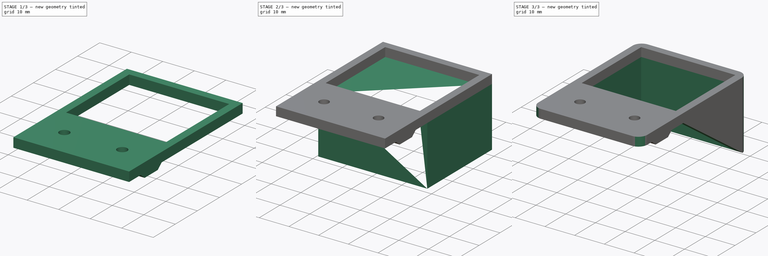
[diagram: build sequence overview — one tinted view per stage of 3, left to right]
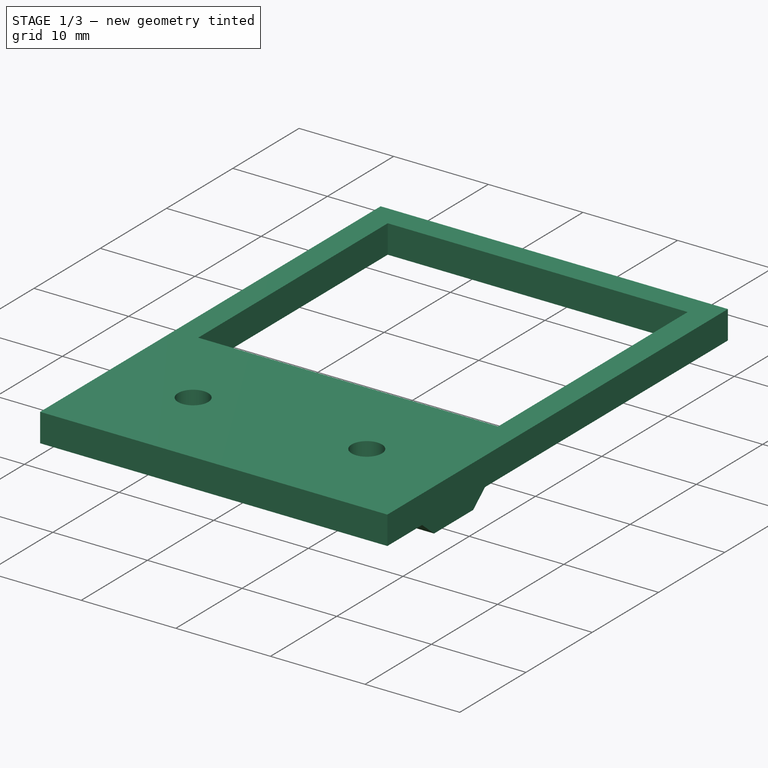
[diagram: stage 1 of 3 — iso view after this stage's code; geometry added in this stage tinted green]
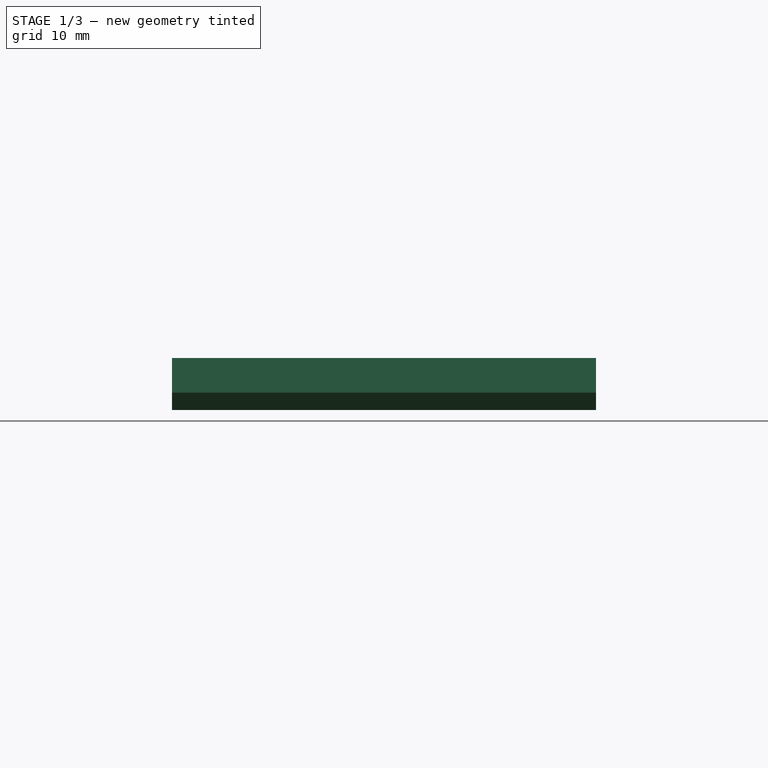
[diagram: stage 1 of 3 — front view after this stage's code; geometry added in this stage tinted green]
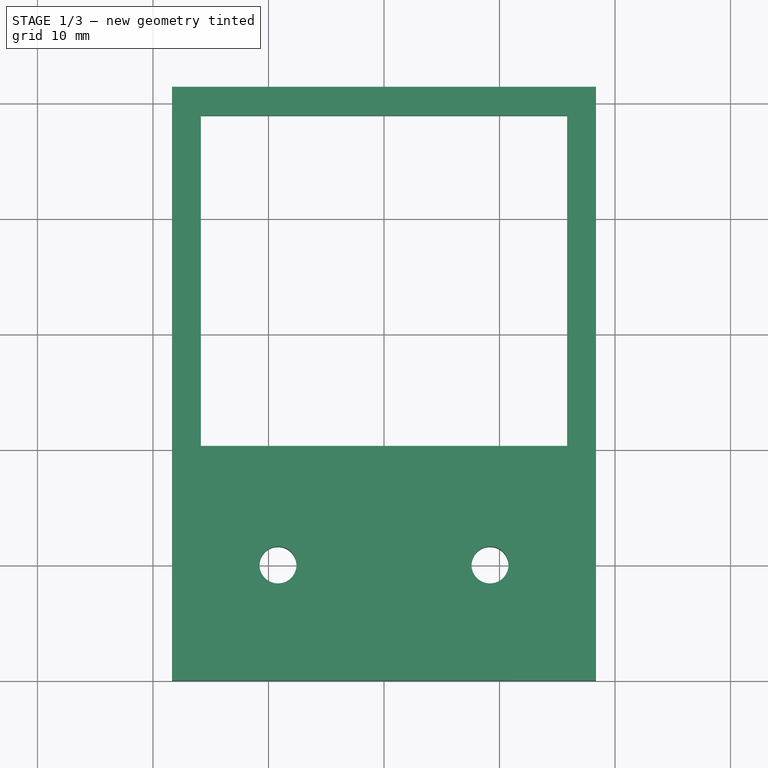
[diagram: stage 1 of 3 — top view after this stage's code; geometry added in this stage tinted green]
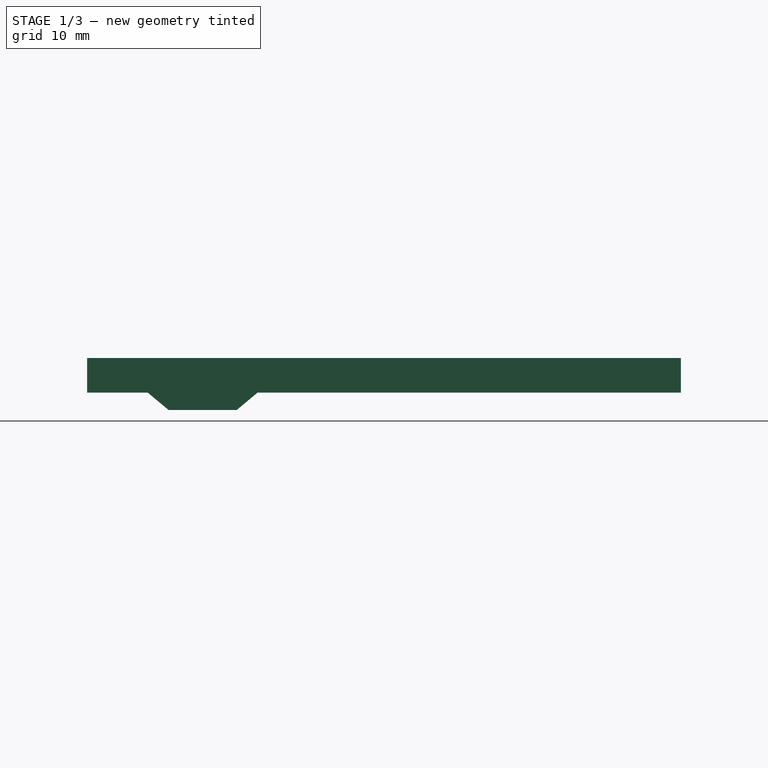
[diagram: stage 1 of 3 — right view after this stage's code; geometry added in this stage tinted green]
FCSTD DOCUMENT  (FreeCAD 0.21R33771 (Git))
Label: suporte-BDESC-S10R-RTR
License: All rights reserved
LicenseURL: https://en.wikipedia.org/wiki/All_rights_reserved
objects: Sketcher::SketchObject×6, PartDesign::Pocket×4, PartDesign::Pad×3, PartDesign::Fillet×1, PartDesign::Body×1
note: 23 computed .brp shape members not serialized (recipe doc carries the construction recipe); baked Part::Feature solids carry a one-line shape summary decoded from their .brp

FEATURE [Sketcher::SketchObject] Sketch
  FullyConstrained = true
  MapMode = 5
  Support = -> [XY_Plane]
  sketch-geometry (12):
    g0: LineSegment StartX=-18.35 StartY=41.4 StartZ=0 EndX=18.35 EndY=41.4 EndZ=0
    g1: LineSegment StartX=18.35 StartY=41.4 StartZ=0 EndX=18.35 EndY=-10 EndZ=0
    g2: LineSegment StartX=18.35 StartY=-10 StartZ=0 EndX=-18.35 EndY=-10 EndZ=0
    g3: LineSegment StartX=-18.35 StartY=-10 StartZ=0 EndX=-18.35 EndY=41.4 EndZ=0
    g4: LineSegment StartX=-18.35 StartY=10 StartZ=0 EndX=18.35 EndY=10 EndZ=0
    g5: LineSegment StartX=18.35 StartY=10 StartZ=0 EndX=18.35 EndY=-10 EndZ=0
    g6: LineSegment StartX=18.35 StartY=-10 StartZ=0 EndX=-18.35 EndY=-10 EndZ=0
    g7: LineSegment StartX=-18.35 StartY=-10 StartZ=0 EndX=-18.35 EndY=10 EndZ=0
    g8: LineSegment StartX=-15.85 StartY=38.9 StartZ=0 EndX=15.85 EndY=38.9 EndZ=0
    g9: LineSegment StartX=15.85 StartY=38.9 StartZ=0 EndX=15.85 EndY=10.3 EndZ=0
    g10: LineSegment StartX=15.85 StartY=10.3 StartZ=0 EndX=-15.85 EndY=10.3 EndZ=0
    g11: LineSegment StartX=-15.85 StartY=10.3 StartZ=0 EndX=-15.85 EndY=38.9 EndZ=0
  constraints (32):
    c: Coincident(g0,g1)
    c: Coincident(g1,g2)
    c: Coincident(g2,g3)
    c: Coincident(g3,g0)
    c: Horizontal(g0)
    c: Horizontal(g2)
    c: Vertical(g1)
    c: Vertical(g3)
    c: Coincident(g4,g5)
    c: Coincident(g5,g6)
    c: Coincident(g6,g7)
    c: Coincident(g7,g4)
    c: Horizontal(g6)
    c: Vertical(g5)
    c: Vertical(g7)
    c: Coincident(g5,g1)
    c: Symmetric(g4,g2,g-1)
    c: Symmetric(g4,g4,g-2)
    c: DistanceY(g1,g4) = 20
    c: Coincident(g8,g9)
    c: Coincident(g9,g10)
    c: Coincident(g10,g11)
    c: Coincident(g11,g8)
    c: Horizontal(g10)
    c: Vertical(g9)
    c: Vertical(g11)
    c: Symmetric(g8,g8,g-2)
    c: DistanceX(g0,g8) = 2.5
    c: DistanceY(g8,g0) = 2.5
    c: DistanceY(g4,g10) = 0.3
    c: DistanceX(g8,g8) = 31.7
    c: DistanceY(g11,g11) = 28.6
FEATURE [PartDesign::Pad] Pad
  Direction = (0,0,1)
  Length = 3
  Length2 = 10
  Profile = -> Sketch
  ReferenceAxis = -> Sketch [N_Axis]
  Type = 0
FEATURE [Sketcher::SketchObject] Sketch001
  FullyConstrained = true
  MapMode = 5
  Placement = pos=(-18.35,0,0) rot=(0.57735,-0.57735,-0.57735;2.0944rad)
  Support = -> [Pad]
  sketch-geometry (4):
    g0: LineSegment StartX=-4.75 StartY=0 StartZ=0 EndX=4.75 EndY=0 EndZ=0
    g1: LineSegment StartX=4.75 StartY=0 StartZ=0 EndX=2.95 EndY=-1.5 EndZ=0
    g2: LineSegment StartX=2.95 StartY=-1.5 StartZ=0 EndX=-2.95 EndY=-1.5 EndZ=0
    g3: LineSegment StartX=-2.95 StartY=-1.5 StartZ=0 EndX=-4.75 EndY=0 EndZ=0
  constraints (10):
    c: Coincident(g0,g1)
    c: Coincident(g1,g2)
    c: Coincident(g2,g3)
    c: Coincident(g3,g0)
    c: Symmetric(g0,g0,g-2)
    c: Symmetric(g2,g1,g-2)
    c: PointOnObject(g-1,g0)
    c: DistanceY(g1,g0) = 1.5
    c: DistanceX(g0,g0) = 9.5
    c: DistanceX(g2,g2) = 5.9
FEATURE [PartDesign::Pad] Pad001
  BaseFeature = -> Pad
  Direction = (-1,0,0)
  Length = 10
  Length2 = 10
  Profile = -> Sketch001
  ReferenceAxis = -> Sketch001 [N_Axis]
  Type = 3
  UpToFace = -> Pad [Face2]
FEATURE [Sketcher::SketchObject] Sketch002
  ExternalGeometry = -> [Pad001]
  FullyConstrained = true
  MapMode = 5
  Placement = pos=(0,0,-1.5) rot=(1,0,0;3.14159rad)
  Support = -> [Pad001]
  sketch-geometry (3):
    g0: Circle CenterX=-9.175 CenterY=0 CenterZ=0 NormalX=0 NormalY=0 NormalZ=1 AngleXU=0 Radius=1.6
    g1: Circle CenterX=9.175 CenterY=0 CenterZ=0 NormalX=0 NormalY=0 NormalZ=1 AngleXU=0 Radius=1.6
    g2: LineSegment StartX=-18.35 StartY=-4.75 StartZ=0 EndX=0 EndY=4.75 EndZ=0
  constraints (8):
    c: Equal(g0,g1)
    c: Diameter(g0) = 3.2
    c: Symmetric(g0,g1,g-2)
    c: PointOnObject(g1,g-1)
    c: Coincident(g2,g-4)
    c: PointOnObject(g2,g-2)
    c: PointOnObject(g2,g-3)
    c: PointOnObject(g0,g2)
FEATURE [PartDesign::Pocket] Pocket
  BaseFeature = -> Pad001
  Direction = (0,0,1)
  Length = 5
  Length2 = 5
  Profile = -> Sketch002
  ReferenceAxis = -> Sketch002 [N_Axis]
  Type = 1
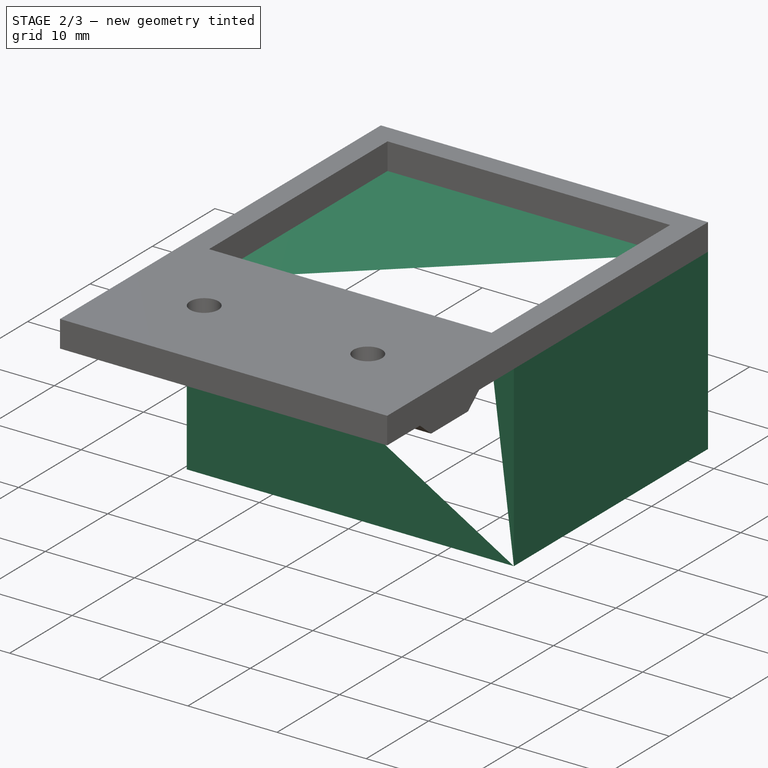
[diagram: stage 2 of 3 — iso view after this stage's code; geometry added in this stage tinted green]
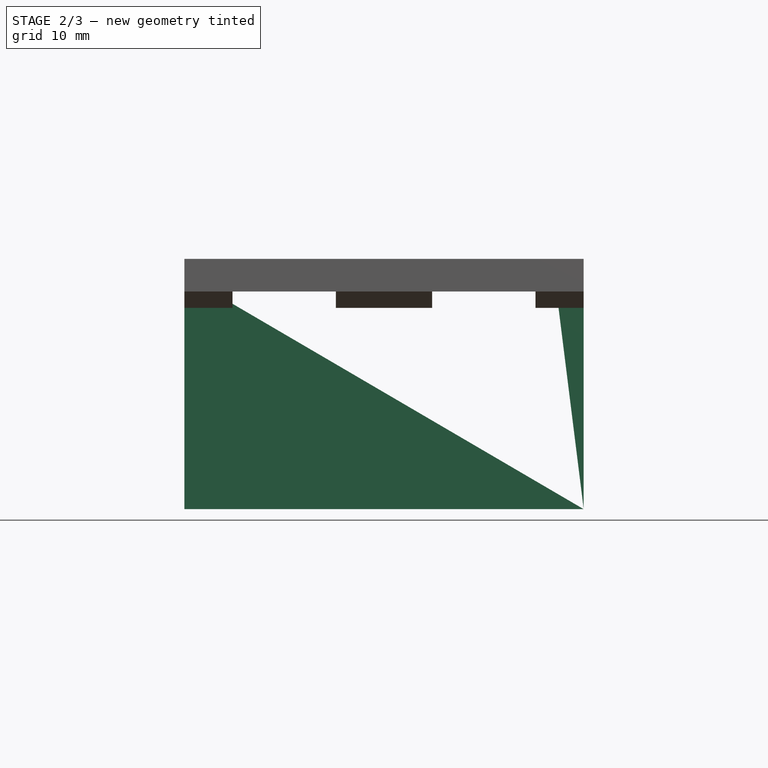
[diagram: stage 2 of 3 — front view after this stage's code; geometry added in this stage tinted green]
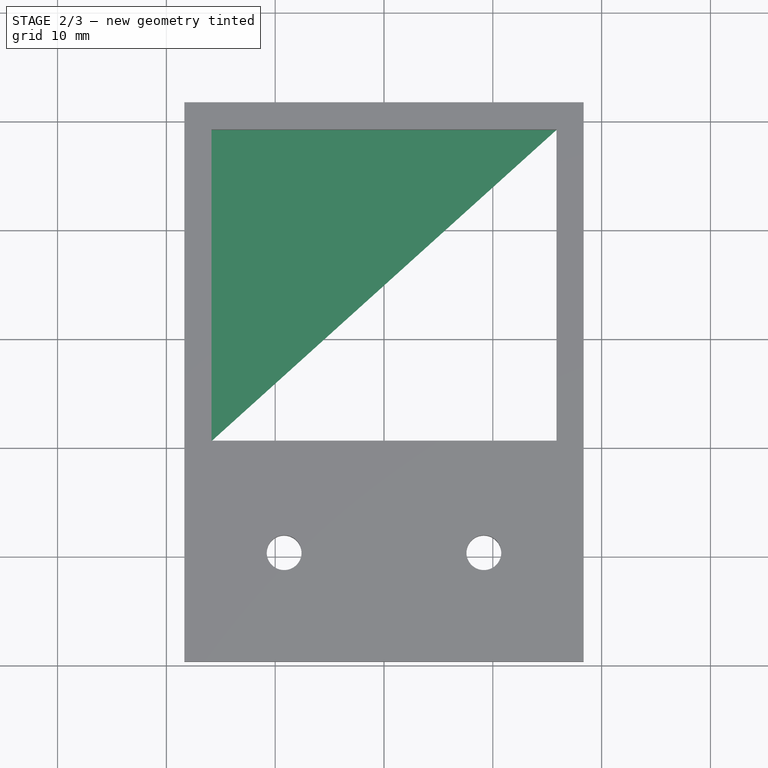
[diagram: stage 2 of 3 — top view after this stage's code; geometry added in this stage tinted green]
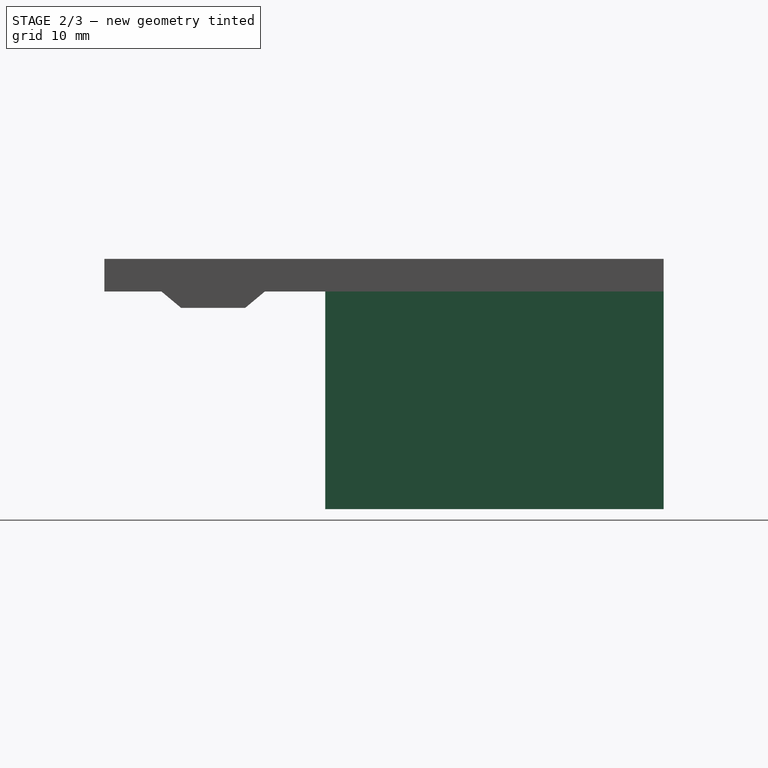
[diagram: stage 2 of 3 — right view after this stage's code; geometry added in this stage tinted green]
FEATURE [Sketcher::SketchObject] Sketch003
  ExternalGeometry = -> [Pocket]
  FullyConstrained = true
  MapMode = 5
  Placement = pos=(0,0,-1.5) rot=(1,0,0;3.14159rad)
  Support = -> [Pocket]
  sketch-geometry (10):
    g0: Circle CenterX=-9.175 CenterY=0 CenterZ=0 NormalX=0 NormalY=0 NormalZ=1 AngleXU=0 Radius=4.75
    g1: Circle CenterX=9.175 CenterY=0 CenterZ=0 NormalX=0 NormalY=0 NormalZ=1 AngleXU=0 Radius=4.75
    g2: LineSegment StartX=-13.925 StartY=4.75 StartZ=0 EndX=-4.425 EndY=4.75 EndZ=0
    g3: LineSegment StartX=-4.425 StartY=4.75 StartZ=0 EndX=-4.425 EndY=-4.75 EndZ=0
    g4: LineSegment StartX=-4.425 StartY=-4.75 StartZ=0 EndX=-13.925 EndY=-4.75 EndZ=0
    g5: LineSegment StartX=-13.925 StartY=-4.75 StartZ=0 EndX=-13.925 EndY=4.75 EndZ=0
    g6: LineSegment StartX=4.425 StartY=4.75 StartZ=0 EndX=13.925 EndY=4.75 EndZ=0
    g7: LineSegment StartX=13.925 StartY=4.75 StartZ=0 EndX=13.925 EndY=-4.75 EndZ=0
    g8: LineSegment StartX=13.925 StartY=-4.75 StartZ=0 EndX=4.425 EndY=-4.75 EndZ=0
    g9: LineSegment StartX=4.425 StartY=-4.75 StartZ=0 EndX=4.425 EndY=4.75 EndZ=0
  constraints (28):
    c: Coincident(g0,g-3)
    c: Coincident(g1,g-4)
    c: Tangent(g0,g-6)
    c: Tangent(g1,g-6)
    c: Coincident(g2,g3)
    c: Coincident(g3,g4)
    c: Coincident(g4,g5)
    c: Coincident(g5,g2)
    c: Horizontal(g2)
    c: Horizontal(g4)
    c: Vertical(g3)
    c: Vertical(g5)
    c: Coincident(g6,g7)
    c: Coincident(g7,g8)
    c: Coincident(g8,g9)
    c: Coincident(g9,g6)
    c: Horizontal(g6)
    c: Horizontal(g8)
    c: Vertical(g7)
    c: Vertical(g9)
    c: Tangent(g6,g1)
    c: Tangent(g7,g1)
    c: Tangent(g9,g1)
    c: Tangent(g8,g1)
    c: Tangent(g4,g0)
    c: Tangent(g3,g0)
    c: Tangent(g2,g0)
    c: Tangent(g5,g0)
FEATURE [PartDesign::Pocket] Pocket001
  BaseFeature = -> Pocket
  Direction = (0,0,1)
  Length = 0
  Length2 = 5
  Profile = -> Sketch003
  ReferenceAxis = -> Sketch003 [N_Axis]
  Type = 3
  UpToFace = -> Pocket [Face7]
FEATURE [Sketcher::SketchObject] Sketch004
  ExternalGeometry = -> [Pocket001]
  FullyConstrained = true
  MapMode = 5
  Placement = pos=(0,0,0) rot=(1,0,0;3.14159rad)
  Support = -> [Pocket001]
  sketch-geometry (4):
    g0: LineSegment StartX=-18.35 StartY=-10.3 StartZ=0 EndX=18.35 EndY=-10.3 EndZ=0
    g1: LineSegment StartX=18.35 StartY=-10.3 StartZ=0 EndX=18.35 EndY=-41.4 EndZ=0
    g2: LineSegment StartX=18.35 StartY=-41.4 StartZ=0 EndX=-18.35 EndY=-41.4 EndZ=0
    g3: LineSegment StartX=-18.35 StartY=-41.4 StartZ=0 EndX=-18.35 EndY=-10.3 EndZ=0
  constraints (11):
    c: Coincident(g0,g1)
    c: Coincident(g1,g2)
    c: Coincident(g2,g3)
    c: Coincident(g3,g0)
    c: Horizontal(g0)
    c: Horizontal(g2)
    c: Vertical(g1)
    c: Vertical(g3)
    c: Coincident(g1,g-5)
    c: PointOnObject(g0,g-3)
    c: PointOnObject(g-4,g0)
FEATURE [PartDesign::Pad] Pad002
  BaseFeature = -> Pocket001
  Direction = (0,0,-1)
  Length = 20
  Length2 = 10
  Profile = -> Sketch004
  ReferenceAxis = -> Sketch004 [N_Axis]
  Type = 0
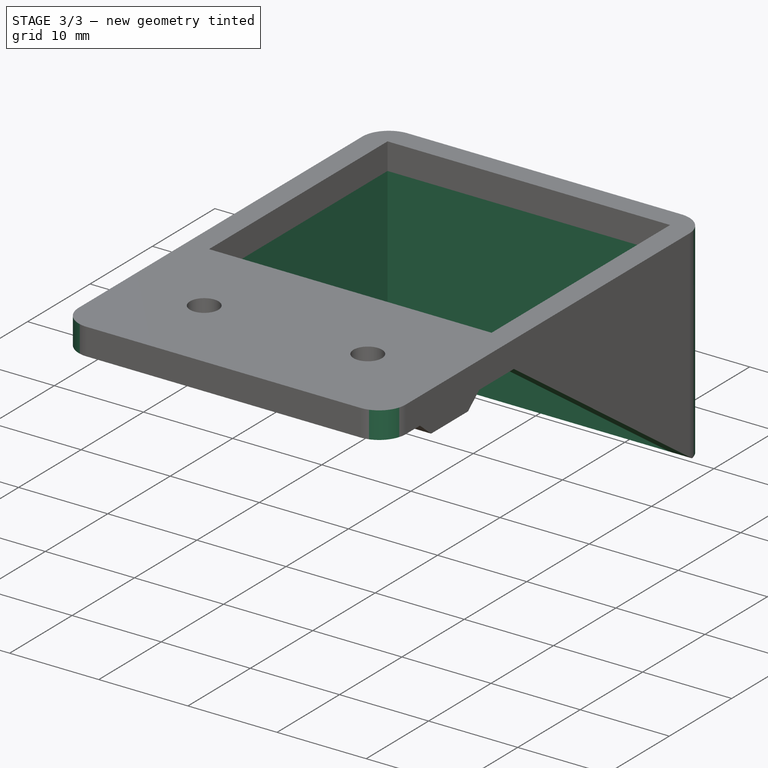
[diagram: stage 3 of 3 — iso view after this stage's code; geometry added in this stage tinted green]
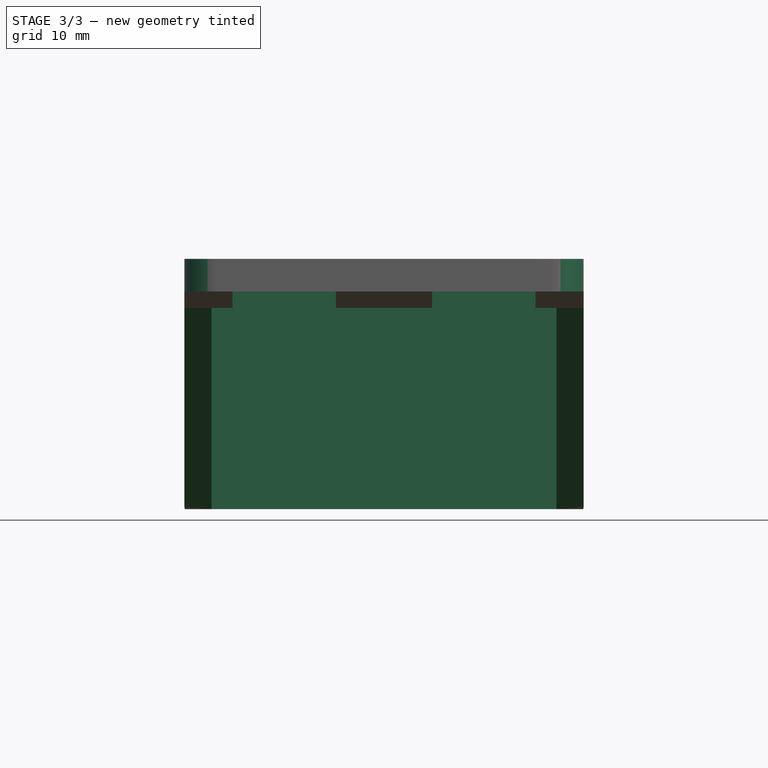
[diagram: stage 3 of 3 — front view after this stage's code; geometry added in this stage tinted green]
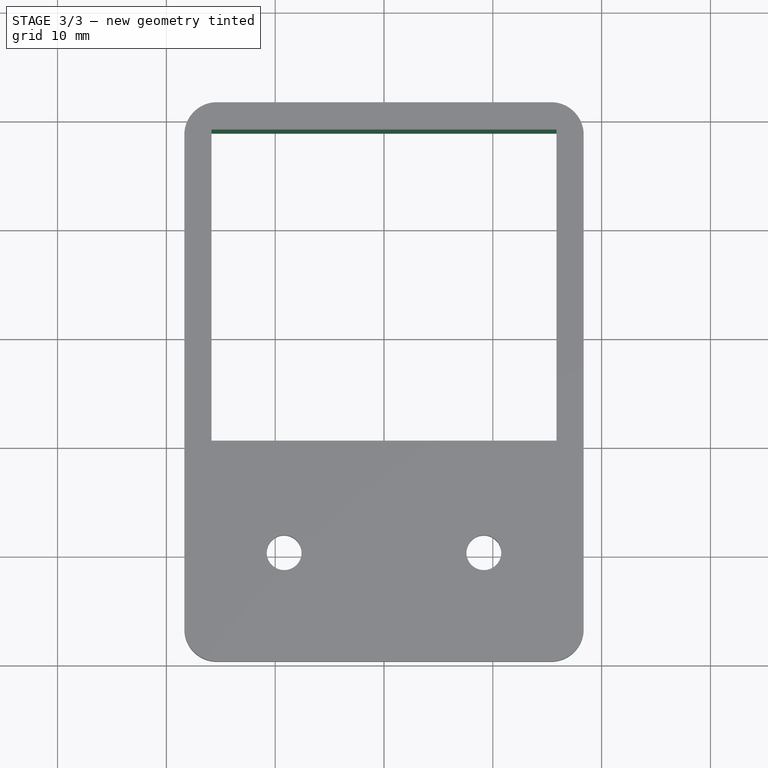
[diagram: stage 3 of 3 — top view after this stage's code; geometry added in this stage tinted green]
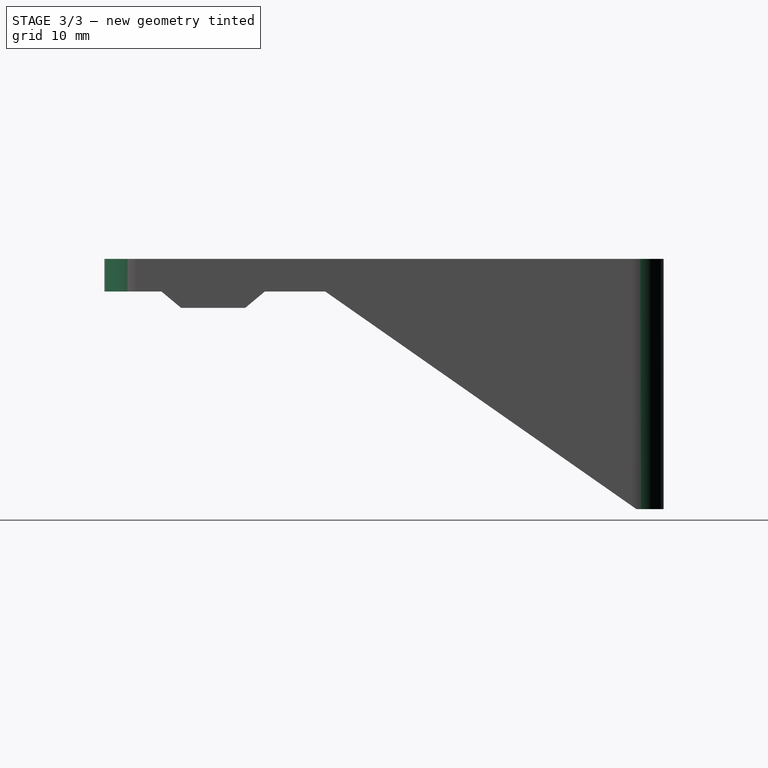
[diagram: stage 3 of 3 — right view after this stage's code; geometry added in this stage tinted green]
FEATURE [PartDesign::Pocket] Pocket002
  BaseFeature = -> Pad002
  Direction = (0,0,-1)
  Length = 5
  Length2 = 5
  Profile = -> Pad002 [Face31]
  Type = 1
FEATURE [Sketcher::SketchObject] Sketch005
  ExternalGeometry = -> [Pocket002]
  FullyConstrained = true
  MapMode = 5
  Placement = pos=(18.35,0,0) rot=(0.57735,0.57735,0.57735;2.0944rad)
  Support = -> [Pocket002]
  sketch-geometry (3):
    g0: LineSegment StartX=10.3 StartY=0 StartZ=0 EndX=10.3 EndY=-20 EndZ=0
    g1: LineSegment StartX=10.3 StartY=-20 StartZ=0 EndX=38.9 EndY=-20 EndZ=0
    g2: LineSegment StartX=38.9 StartY=-20 StartZ=0 EndX=10.3 EndY=0 EndZ=0
  constraints (6):
    c: Coincident(g0,g1)
    c: Coincident(g1,g2)
    c: Coincident(g2,g0)
    c: Coincident(g0,g-4)
    c: Coincident(g0,g-4)
    c: Coincident(g1,g-5)
FEATURE [PartDesign::Pocket] Pocket003
  BaseFeature = -> Pocket002
  Direction = (-1,0,0)
  Length = 5
  Length2 = 5
  Profile = -> Sketch005
  ReferenceAxis = -> Sketch005 [N_Axis]
  Type = 1
FEATURE [PartDesign::Fillet] Fillet
  Base = -> Pocket003 [Edge17,Edge18,Edge5,Edge11]
  BaseFeature = -> Pocket003
  Radius = 3
  SupportTransform = false
  UseAllEdges = false
FEATURE [PartDesign::Body] Body
  Group = -> [Sketch,Pad,Sketch001,Pad001,Sketch002,Pocket,Sketch003,Pocket001,Sketch004,Pad002,Pocket002,Sketch005,Pocket003,Fillet]
  Origin = -> Origin
  Tip = -> Fillet
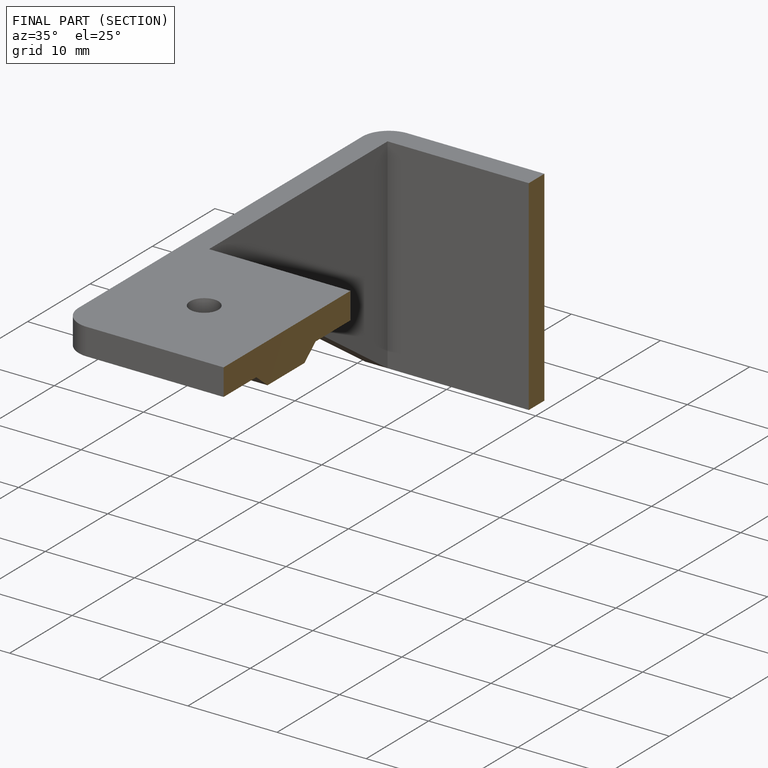
[diagram: finished part — half-section view (interior)]
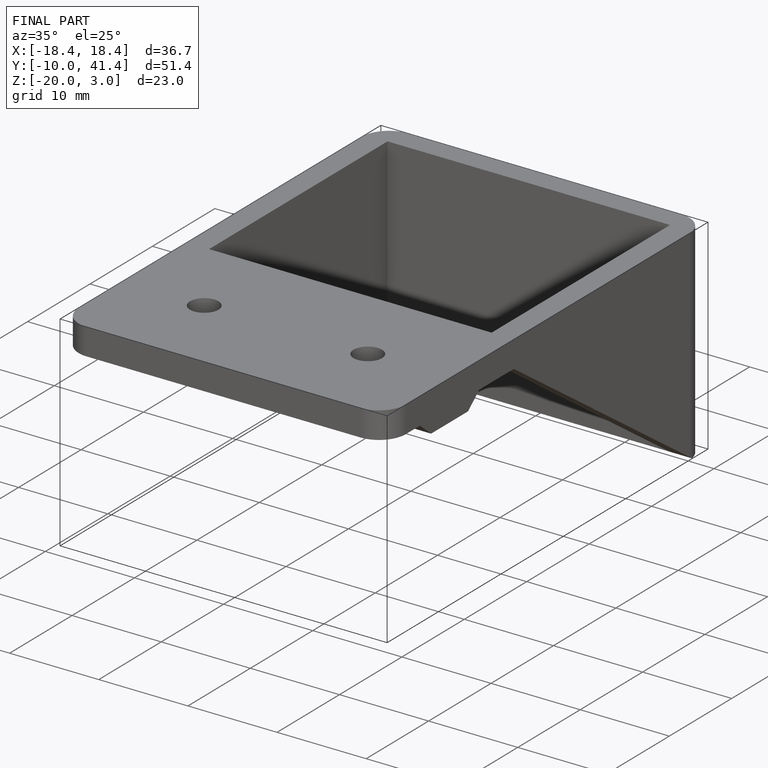
[diagram: finished part — iso view with bounding-box wireframe]
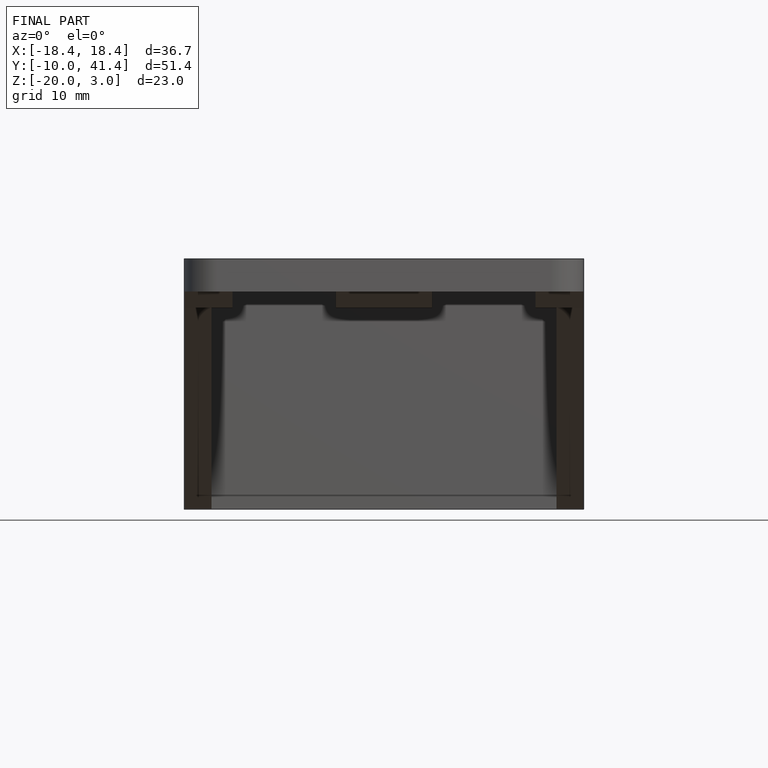
[diagram: finished part — front view with bounding-box wireframe]
